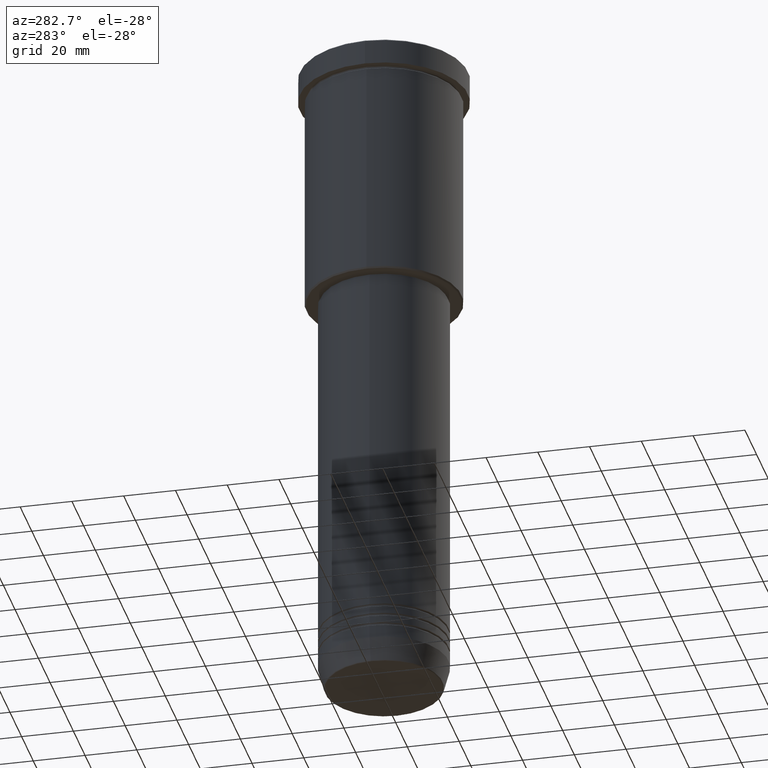
[diagram: clean part render]
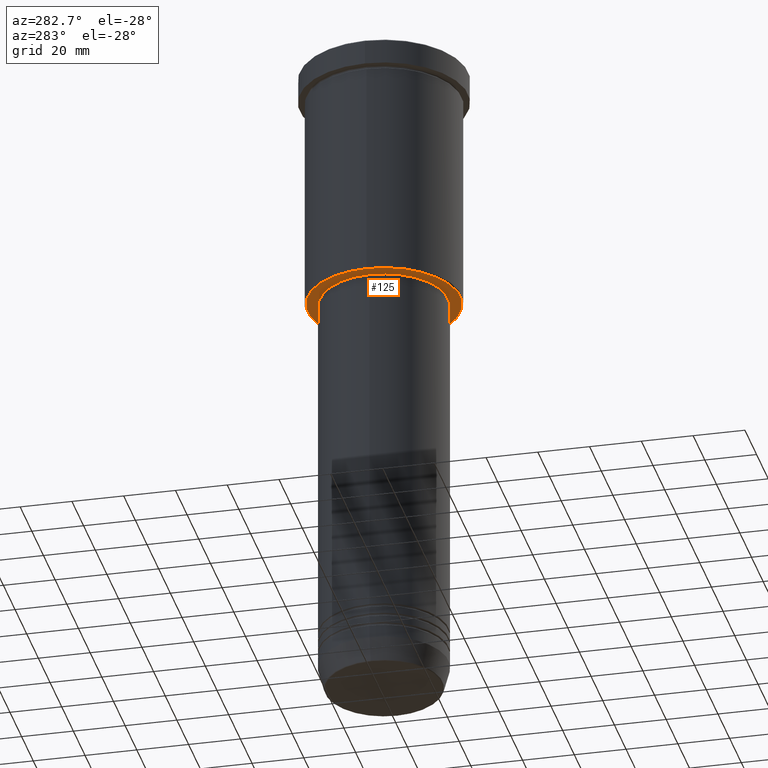
[diagram: same view with one face highlighted and labeled with its STEP entity id]
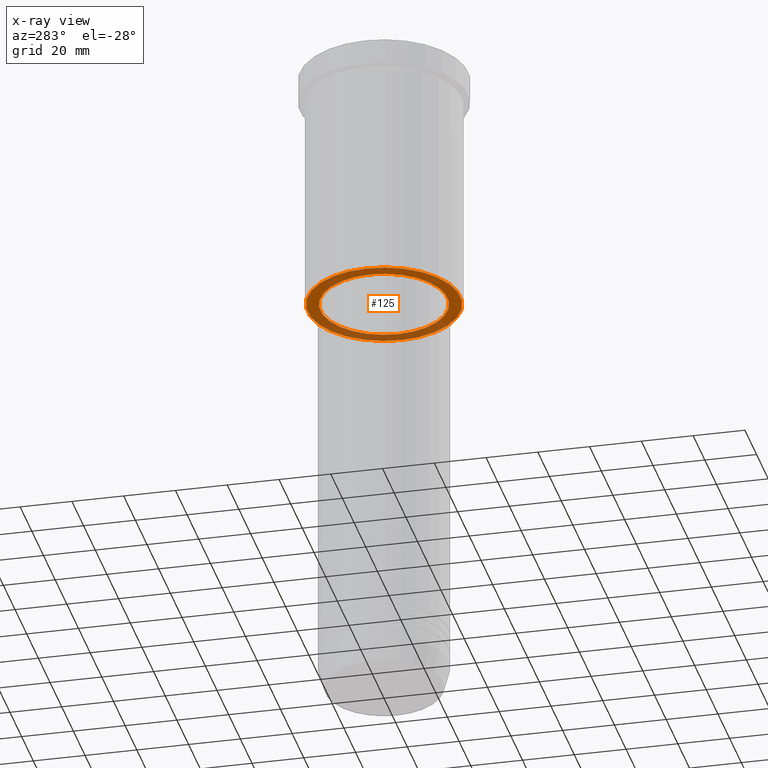
[diagram: x-ray of the same camera — body ghosted, the highlighted face saturated]
A machine part, auxiliary view. The second image highlights one B-rep face of the part: STEP entity #125.
The next image is the same camera in x-ray: the body ghosted, the highlighted face saturated — about 32% of this face is hidden behind the body in this view.
In plain terms, the highlighted planar face has unit normal (0, 0, -1).
Its self-contained STEP definition (entity closure, byte-faithful):
#125 = ADVANCED_FACE ( 'NONE', ( #772, #946 ), #682, .T. ) ;
#126 = AXIS2_PLACEMENT_3D ( 'NONE', #602, #966, #136 ) ;
#136 = DIRECTION ( 'NONE',  ( -1.000000000000000000, 0.000000000000000000, 0.000000000000000000 ) ) ;
#143 = CARTESIAN_POINT ( 'NONE',  ( 29.50000000000002132, 0.000000000000000000, -96.00000000000000000 ) ) ;
#145 = VERTEX_POINT ( 'NONE', #588 ) ;
#209 = EDGE_CURVE ( 'NONE', #992, #646, #653, .T. ) ;
#233 = VERTEX_POINT ( 'NONE', #767 ) ;
#289 = DIRECTION ( 'NONE',  ( 1.000000000000000000, 0.000000000000000000, 0.000000000000000000 ) ) ;
#339 = CIRCLE ( 'NONE', #703, 29.50000000000002132 ) ;
#378 = CARTESIAN_POINT ( 'NONE',  ( 0.000000000000000000, 0.000000000000000000, -96.00000000000000000 ) ) ;
#414 = DIRECTION ( 'NONE',  ( -1.000000000000000000, 0.000000000000000000, -0.000000000000000000 ) ) ;
#469 = CARTESIAN_POINT ( 'NONE',  ( 0.000000000000000000, 0.000000000000000000, -96.00000000000000000 ) ) ;
#523 = CIRCLE ( 'NONE', #925, 24.50000000000000000 ) ;
#534 = ORIENTED_EDGE ( 'NONE', *, *, #984, .T. ) ;
#556 = EDGE_CURVE ( 'NONE', #646, #992, #339, .T. ) ;
#588 = CARTESIAN_POINT ( 'NONE',  ( 24.50000000000000000, 0.000000000000000000, -96.00000000000000000 ) ) ;
#593 = CARTESIAN_POINT ( 'NONE',  ( 0.000000000000000000, 30.00000000000000000, -96.00000000000000000 ) ) ;
#602 = CARTESIAN_POINT ( 'NONE',  ( 0.000000000000000000, 0.000000000000000000, -96.00000000000000000 ) ) ;
#642 = EDGE_LOOP ( 'NONE', ( #534, #1168 ) ) ;
#646 = VERTEX_POINT ( 'NONE', #143 ) ;
#651 = DIRECTION ( 'NONE',  ( 1.000000000000000000, 0.000000000000000000, 0.000000000000000000 ) ) ;
#653 = CIRCLE ( 'NONE', #126, 29.50000000000002132 ) ;
#659 = ORIENTED_EDGE ( 'NONE', *, *, #556, .T. ) ;
#666 = DIRECTION ( 'NONE',  ( 0.000000000000000000, 0.000000000000000000, -1.000000000000000000 ) ) ;
#679 = AXIS2_PLACEMENT_3D ( 'NONE', #593, #779, #414 ) ;
#682 = PLANE ( 'NONE',  #679 ) ;
#703 = AXIS2_PLACEMENT_3D ( 'NONE', #1036, #666, #1115 ) ;
#704 = AXIS2_PLACEMENT_3D ( 'NONE', #378, #751, #289 ) ;
#710 = CARTESIAN_POINT ( 'NONE',  ( -29.50000000000002132, 3.643324227463376968E-15, -96.00000000000000000 ) ) ;
#725 = ORIENTED_EDGE ( 'NONE', *, *, #209, .T. ) ;
#751 = DIRECTION ( 'NONE',  ( -0.000000000000000000, -0.000000000000000000, 1.000000000000000000 ) ) ;
#767 = CARTESIAN_POINT ( 'NONE',  ( -24.50000000000000000, 3.000384657911015469E-15, -96.00000000000000000 ) ) ;
#772 = FACE_OUTER_BOUND ( 'NONE', #809, .T. ) ;
#779 = DIRECTION ( 'NONE',  ( 0.000000000000000000, 0.000000000000000000, -1.000000000000000000 ) ) ;
#809 = EDGE_LOOP ( 'NONE', ( #659, #725 ) ) ;
#858 = DIRECTION ( 'NONE',  ( -0.000000000000000000, -0.000000000000000000, 1.000000000000000000 ) ) ;
#898 = EDGE_CURVE ( 'NONE', #233, #145, #523, .T. ) ;
#925 = AXIS2_PLACEMENT_3D ( 'NONE', #469, #858, #651 ) ;
#946 = FACE_BOUND ( 'NONE', #642, .T. ) ;
#966 = DIRECTION ( 'NONE',  ( 0.000000000000000000, 0.000000000000000000, -1.000000000000000000 ) ) ;
#984 = EDGE_CURVE ( 'NONE', #145, #233, #1092, .T. ) ;
#992 = VERTEX_POINT ( 'NONE', #710 ) ;
#1036 = CARTESIAN_POINT ( 'NONE',  ( 0.000000000000000000, 0.000000000000000000, -96.00000000000000000 ) ) ;
#1092 = CIRCLE ( 'NONE', #704, 24.50000000000000000 ) ;
#1115 = DIRECTION ( 'NONE',  ( -1.000000000000000000, 0.000000000000000000, 0.000000000000000000 ) ) ;
#1168 = ORIENTED_EDGE ( 'NONE', *, *, #898, .T. ) ;